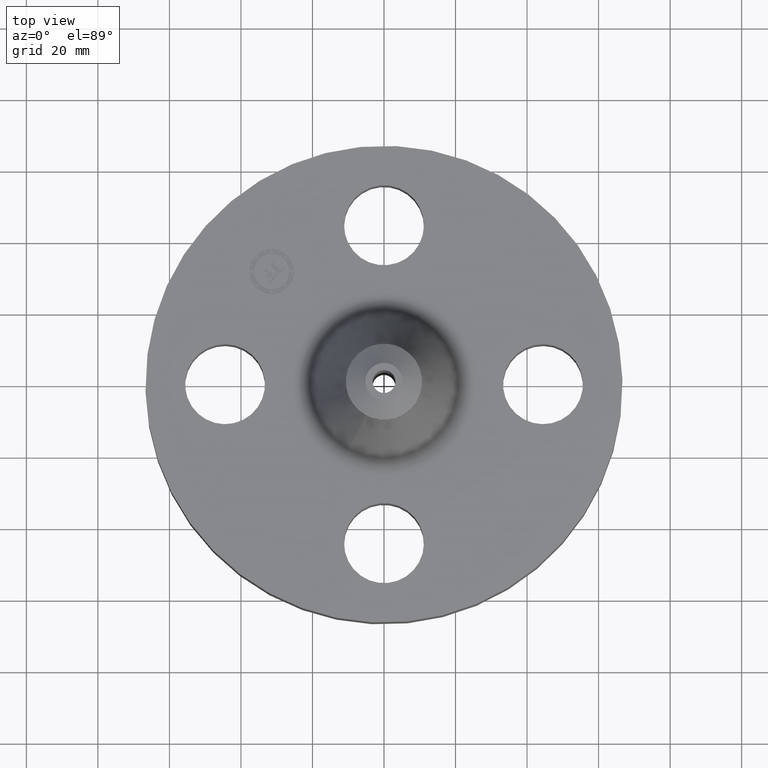
[diagram: clean part render]
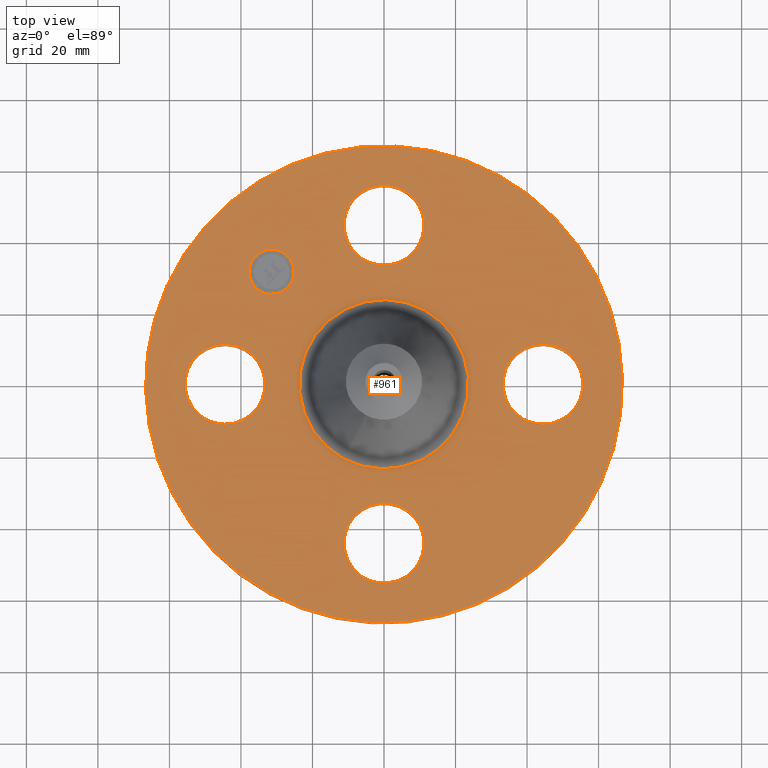
[diagram: same view with one face highlighted and labeled with its STEP entity id]
A machine part, top view. The second image highlights one B-rep face of the part: STEP entity #961.
In plain terms, the highlighted planar face has unit normal (0, 0, -1).
Its self-contained STEP definition (entity closure, byte-faithful):
#65=AXIS2_PLACEMENT_3D('Circle Axis2P3D',#63,#64,$) ;
#82=AXIS2_PLACEMENT_3D('Circle Axis2P3D',#80,#81,$) ;
#115=AXIS2_PLACEMENT_3D('Circle Axis2P3D',#113,#114,$) ;
#139=AXIS2_PLACEMENT_3D('Circle Axis2P3D',#137,#138,$) ;
#156=AXIS2_PLACEMENT_3D('Circle Axis2P3D',#154,#155,$) ;
#191=AXIS2_PLACEMENT_3D('Circle Axis2P3D',#189,#190,$) ;
#574=AXIS2_PLACEMENT_3D('Circle Axis2P3D',#572,#573,$) ;
#586=AXIS2_PLACEMENT_3D('Circle Axis2P3D',#584,#585,$) ;
#617=AXIS2_PLACEMENT_3D('Circle Axis2P3D',#615,#616,$) ;
#629=AXIS2_PLACEMENT_3D('Circle Axis2P3D',#627,#628,$) ;
#660=AXIS2_PLACEMENT_3D('Circle Axis2P3D',#658,#659,$) ;
#672=AXIS2_PLACEMENT_3D('Circle Axis2P3D',#670,#671,$) ;
#917=AXIS2_PLACEMENT_3D('Plane Axis2P3D',#914,#915,#916) ;
#945=AXIS2_PLACEMENT_3D('Circle Axis2P3D',#943,#944,$) ;
#954=AXIS2_PLACEMENT_3D('Circle Axis2P3D',#952,#953,$) ;
#46=CARTESIAN_POINT('Vertex',(-0.386136327233,1.96094723699,1.19)) ;
#60=CARTESIAN_POINT('Vertex',(0.386136327233,1.53905276302,1.19)) ;
#63=CARTESIAN_POINT('Axis2P3D Location',(0.,1.75000000001,1.19)) ;
#80=CARTESIAN_POINT('Axis2P3D Location',(0.,1.75000000001,1.19)) ;
#110=CARTESIAN_POINT('Vertex',(-1.25849203884,-2.30365422497,1.19)) ;
#113=CARTESIAN_POINT('Axis2P3D Location',(0.,0.,1.19)) ;
#117=CARTESIAN_POINT('Vertex',(1.25849203884,2.30365422497,1.19)) ;
#137=CARTESIAN_POINT('Axis2P3D Location',(0.,0.,1.19)) ;
#154=CARTESIAN_POINT('Axis2P3D Location',(0.,0.,1.19)) ;
#158=CARTESIAN_POINT('Vertex',(0.446719371414,0.817714324425,1.19)) ;
#160=CARTESIAN_POINT('Vertex',(-0.446719371414,-0.817714324425,1.19)) ;
#189=CARTESIAN_POINT('Axis2P3D Location',(0.,0.,1.19)) ;
#562=CARTESIAN_POINT('Vertex',(-1.96094723699,-0.386136327233,1.19)) ;
#569=CARTESIAN_POINT('Vertex',(-1.53905276302,0.386136327233,1.19)) ;
#572=CARTESIAN_POINT('Axis2P3D Location',(-1.75000000001,-3.21469784777E-016,1.19)) ;
#584=CARTESIAN_POINT('Axis2P3D Location',(-1.75000000001,-3.21469784777E-016,1.19)) ;
#605=CARTESIAN_POINT('Vertex',(0.386136327233,-1.96094723699,1.19)) ;
#612=CARTESIAN_POINT('Vertex',(-0.386136327233,-1.53905276302,1.19)) ;
#615=CARTESIAN_POINT('Axis2P3D Location',(2.14313189852E-016,-1.75000000001,1.19)) ;
#627=CARTESIAN_POINT('Axis2P3D Location',(2.14313189852E-016,-1.75000000001,1.19)) ;
#648=CARTESIAN_POINT('Vertex',(1.96094723699,0.386136327233,1.19)) ;
#655=CARTESIAN_POINT('Vertex',(1.53905276302,-0.386136327233,1.19)) ;
#658=CARTESIAN_POINT('Axis2P3D Location',(1.75000000001,-1.72584639625E-016,1.19)) ;
#670=CARTESIAN_POINT('Axis2P3D Location',(1.75000000001,-1.72584639625E-016,1.19)) ;
#914=CARTESIAN_POINT('Axis2P3D Location',(0.,2.62500000001,1.19)) ;
#943=CARTESIAN_POINT('Axis2P3D Location',(-1.23743686708,1.23743686708,1.19)) ;
#947=CARTESIAN_POINT('Vertex',(-1.41244579543,1.06242793874,1.19)) ;
#949=CARTESIAN_POINT('Vertex',(-1.06242793874,1.41244579543,1.19)) ;
#952=CARTESIAN_POINT('Axis2P3D Location',(-1.23743686708,1.23743686708,1.19)) ;
#64=DIRECTION('Axis2P3D Direction',(0.,-0.,-0.0393700787402)) ;
#81=DIRECTION('Axis2P3D Direction',(0.,-0.,-0.0393700787402)) ;
#114=DIRECTION('Axis2P3D Direction',(0.,0.,-0.0393700787402)) ;
#138=DIRECTION('Axis2P3D Direction',(0.,0.,-0.0393700787402)) ;
#155=DIRECTION('Axis2P3D Direction',(0.,0.,-0.0393700787402)) ;
#190=DIRECTION('Axis2P3D Direction',(0.,0.,-0.0393700787402)) ;
#573=DIRECTION('Axis2P3D Direction',(0.,0.,-0.0393700787402)) ;
#585=DIRECTION('Axis2P3D Direction',(0.,0.,-0.0393700787402)) ;
#616=DIRECTION('Axis2P3D Direction',(-0.,0.,-0.0393700787402)) ;
#628=DIRECTION('Axis2P3D Direction',(-0.,0.,-0.0393700787402)) ;
#659=DIRECTION('Axis2P3D Direction',(0.,-0.,-0.0393700787402)) ;
#671=DIRECTION('Axis2P3D Direction',(0.,-0.,-0.0393700787402)) ;
#915=DIRECTION('Axis2P3D Direction',(0.,0.,-0.0393700787402)) ;
#916=DIRECTION('Axis2P3D XDirection',(0.0393700787402,0.,0.)) ;
#944=DIRECTION('Axis2P3D Direction',(0.,0.,-0.0393700787402)) ;
#953=DIRECTION('Axis2P3D Direction',(0.,0.,-0.0393700787402)) ;
#920=ORIENTED_EDGE('',*,*,#141,.F.) ;
#921=ORIENTED_EDGE('',*,*,#119,.F.) ;
#924=ORIENTED_EDGE('',*,*,#67,.T.) ;
#925=ORIENTED_EDGE('',*,*,#84,.T.) ;
#928=ORIENTED_EDGE('',*,*,#193,.T.) ;
#929=ORIENTED_EDGE('',*,*,#162,.T.) ;
#932=ORIENTED_EDGE('',*,*,#674,.T.) ;
#933=ORIENTED_EDGE('',*,*,#662,.T.) ;
#936=ORIENTED_EDGE('',*,*,#631,.T.) ;
#937=ORIENTED_EDGE('',*,*,#619,.T.) ;
#940=ORIENTED_EDGE('',*,*,#588,.T.) ;
#941=ORIENTED_EDGE('',*,*,#576,.T.) ;
#958=ORIENTED_EDGE('',*,*,#951,.T.) ;
#959=ORIENTED_EDGE('',*,*,#956,.T.) ;
#926=FACE_BOUND('',#923,.T.) ;
#930=FACE_BOUND('',#927,.T.) ;
#934=FACE_BOUND('',#931,.T.) ;
#938=FACE_BOUND('',#935,.T.) ;
#942=FACE_BOUND('',#939,.T.) ;
#960=FACE_BOUND('',#957,.T.) ;
#961=ADVANCED_FACE('PartBody',(#922,#926,#930,#934,#938,#942,#960),#918,.F.) ;
#66=CIRCLE('generated circle',#65,0.440000000002) ;
#83=CIRCLE('generated circle',#82,0.440000000002) ;
#116=CIRCLE('generated circle',#115,2.62500000001) ;
#140=CIRCLE('generated circle',#139,2.62500000001) ;
#157=CIRCLE('generated circle',#156,0.931780506968) ;
#192=CIRCLE('generated circle',#191,0.931780506968) ;
#575=CIRCLE('generated circle',#574,0.440000000002) ;
#587=CIRCLE('generated circle',#586,0.440000000002) ;
#618=CIRCLE('generated circle',#617,0.440000000002) ;
#630=CIRCLE('generated circle',#629,0.440000000002) ;
#661=CIRCLE('generated circle',#660,0.440000000002) ;
#673=CIRCLE('generated circle',#672,0.440000000002) ;
#946=CIRCLE('generated circle',#945,0.247500000001) ;
#955=CIRCLE('generated circle',#954,0.247500000001) ;
#67=EDGE_CURVE('',#47,#61,#66,.T.) ;
#84=EDGE_CURVE('',#61,#47,#83,.T.) ;
#119=EDGE_CURVE('',#111,#118,#116,.T.) ;
#141=EDGE_CURVE('',#118,#111,#140,.T.) ;
#162=EDGE_CURVE('',#159,#161,#157,.T.) ;
#193=EDGE_CURVE('',#161,#159,#192,.T.) ;
#576=EDGE_CURVE('',#563,#570,#575,.T.) ;
#588=EDGE_CURVE('',#570,#563,#587,.T.) ;
#619=EDGE_CURVE('',#606,#613,#618,.T.) ;
#631=EDGE_CURVE('',#613,#606,#630,.T.) ;
#662=EDGE_CURVE('',#649,#656,#661,.T.) ;
#674=EDGE_CURVE('',#656,#649,#673,.T.) ;
#951=EDGE_CURVE('',#948,#950,#946,.T.) ;
#956=EDGE_CURVE('',#950,#948,#955,.T.) ;
#919=EDGE_LOOP('',(#920,#921)) ;
#923=EDGE_LOOP('',(#924,#925)) ;
#927=EDGE_LOOP('',(#928,#929)) ;
#931=EDGE_LOOP('',(#932,#933)) ;
#935=EDGE_LOOP('',(#936,#937)) ;
#939=EDGE_LOOP('',(#940,#941)) ;
#957=EDGE_LOOP('',(#958,#959)) ;
#922=FACE_OUTER_BOUND('',#919,.T.) ;
#918=PLANE('',#917) ;
#47=VERTEX_POINT('',#46) ;
#61=VERTEX_POINT('',#60) ;
#111=VERTEX_POINT('',#110) ;
#118=VERTEX_POINT('',#117) ;
#159=VERTEX_POINT('',#158) ;
#161=VERTEX_POINT('',#160) ;
#563=VERTEX_POINT('',#562) ;
#570=VERTEX_POINT('',#569) ;
#606=VERTEX_POINT('',#605) ;
#613=VERTEX_POINT('',#612) ;
#649=VERTEX_POINT('',#648) ;
#656=VERTEX_POINT('',#655) ;
#948=VERTEX_POINT('',#947) ;
#950=VERTEX_POINT('',#949) ;